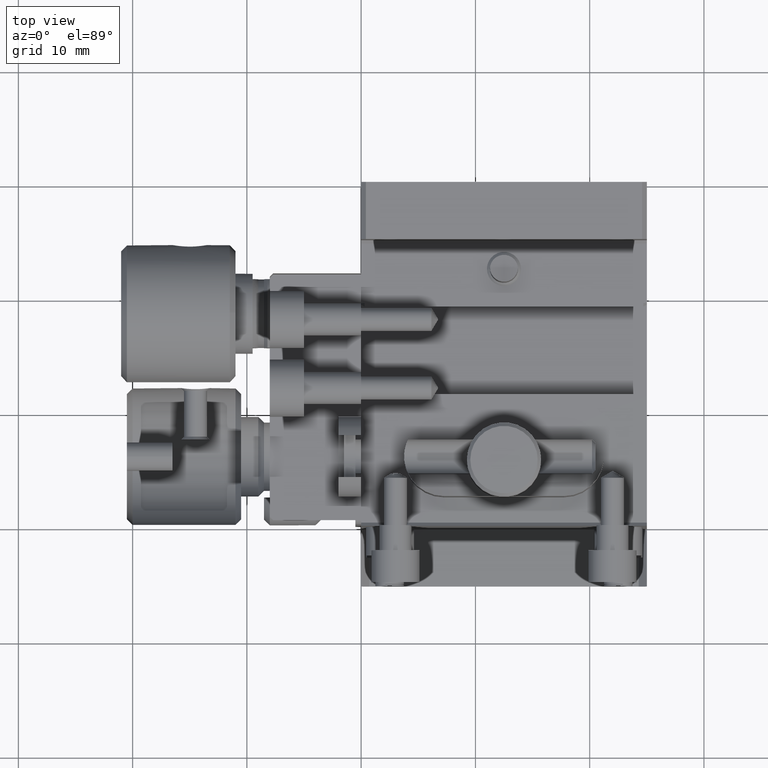
[diagram: clean part render]
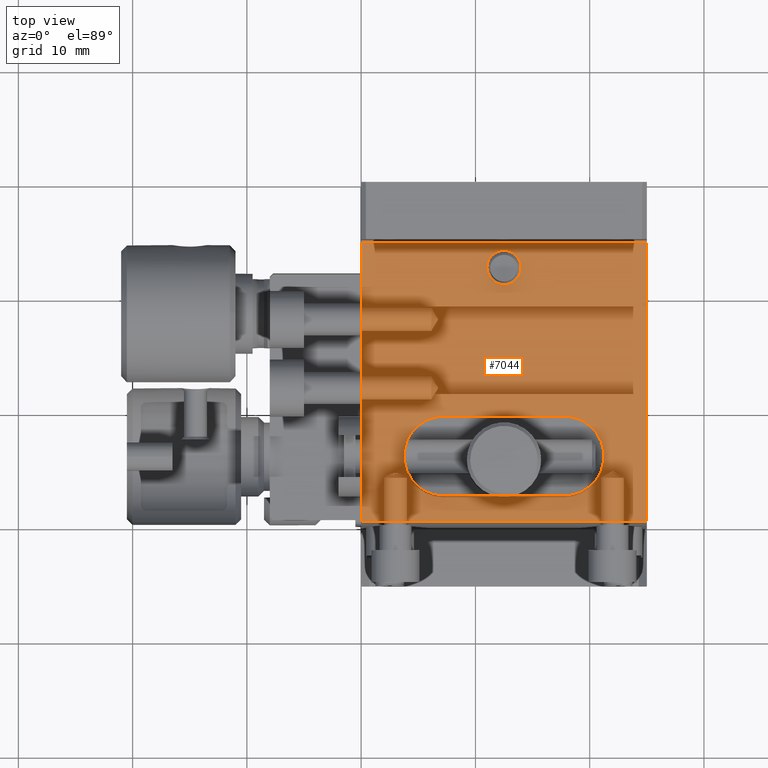
[diagram: same view with one face highlighted and labeled with its STEP entity id]
A machine part, top view. The second image highlights one B-rep face of the part: STEP entity #7044.
In plain terms, the highlighted planar face has unit normal (0, -0, -1).
Its self-contained STEP definition (entity closure, byte-faithful):
#350 = VECTOR ( 'NONE', #8109, 1000.000000000000000 ) ;
#439 = VERTEX_POINT ( 'NONE', #1603 ) ;
#516 = VERTEX_POINT ( 'NONE', #3213 ) ;
#634 = DIRECTION ( 'NONE',  ( 1.000000000000000000, 0.000000000000000000, 0.000000000000000000 ) ) ;
#646 = ORIENTED_EDGE ( 'NONE', *, *, #7902, .T. ) ;
#677 = AXIS2_PLACEMENT_3D ( 'NONE', #5592, #5691, #1373 ) ;
#845 = VERTEX_POINT ( 'NONE', #2065 ) ;
#901 = EDGE_LOOP ( 'NONE', ( #2744, #1547, #1986, #1946 ) ) ;
#1177 = EDGE_CURVE ( 'NONE', #8571, #8323, #4103, .T. ) ;
#1247 = FACE_BOUND ( 'NONE', #3575, .T. ) ;
#1271 = CARTESIAN_POINT ( 'NONE',  ( 0.000000000000000000, 20.30000000000000782, -4.621587790148713127E-16 ) ) ;
#1373 = DIRECTION ( 'NONE',  ( 1.000000000000000000, 0.000000000000000000, 0.000000000000000000 ) ) ;
#1442 = CARTESIAN_POINT ( 'NONE',  ( 12.50000000000000000, 42.49999999999999289, 0.000000000000000000 ) ) ;
#1477 = CARTESIAN_POINT ( 'NONE',  ( 0.000000000000000000, 44.70000000000000284, -3.593425470377331621E-15 ) ) ;
#1503 = CARTESIAN_POINT ( 'NONE',  ( 25.00000000000000000, 29.50000000000000000, -5.765651408217207155E-16 ) ) ;
#1547 = ORIENTED_EDGE ( 'NONE', *, *, #7279, .F. ) ;
#1600 = VERTEX_POINT ( 'NONE', #1271 ) ;
#1603 = CARTESIAN_POINT ( 'NONE',  ( 17.75000000000000355, 22.50000000000000000, -3.796280499234341948E-17 ) ) ;
#1878 = CIRCLE ( 'NONE', #677, 3.500000000000000444 ) ;
#1926 = CARTESIAN_POINT ( 'NONE',  ( 25.00000000000000000, 22.50000000000000000, -1.518512199693736779E-16 ) ) ;
#1946 = ORIENTED_EDGE ( 'NONE', *, *, #5940, .T. ) ;
#1986 = ORIENTED_EDGE ( 'NONE', *, *, #1177, .T. ) ;
#2007 = CARTESIAN_POINT ( 'NONE',  ( 25.00000000000000000, 44.70000000000000284, -1.498801083243959949E-15 ) ) ;
#2065 = CARTESIAN_POINT ( 'NONE',  ( 25.00000000000000000, 20.30000000000000782, -4.621587790148713127E-16 ) ) ;
#2069 = LINE ( 'NONE', #1503, #9137 ) ;
#2118 = DIRECTION ( 'NONE',  ( -1.000000000000000000, -0.000000000000000000, -0.000000000000000000 ) ) ;
#2171 = EDGE_CURVE ( 'NONE', #845, #1600, #8567, .T. ) ;
#2721 = CARTESIAN_POINT ( 'NONE',  ( 17.75000000000000355, 29.50000000000000000, -1.441412852054301789E-16 ) ) ;
#2744 = ORIENTED_EDGE ( 'NONE', *, *, #2171, .T. ) ;
#3169 = LINE ( 'NONE', #8247, #350 ) ;
#3195 = EDGE_LOOP ( 'NONE', ( #6824, #646, #6419, #6481 ) ) ;
#3213 = CARTESIAN_POINT ( 'NONE',  ( 7.249999999999999112, 22.50000000000000000, -3.796280499234341948E-17 ) ) ;
#3426 = VECTOR ( 'NONE', #4013, 1000.000000000000000 ) ;
#3467 = CIRCLE ( 'NONE', #8784, 1.500000000010003776 ) ;
#3564 = EDGE_CURVE ( 'NONE', #439, #4060, #3773, .T. ) ;
#3575 = EDGE_LOOP ( 'NONE', ( #6939 ) ) ;
#3616 = DIRECTION ( 'NONE',  ( 0.000000000000000000, 1.000000000000000000, -6.067341726462099832E-17 ) ) ;
#3634 = DIRECTION ( 'NONE',  ( -1.000000000000000000, -0.000000000000000000, -0.000000000000000000 ) ) ;
#3756 = VERTEX_POINT ( 'NONE', #5027 ) ;
#3773 = CIRCLE ( 'NONE', #9080, 3.499999999999999556 ) ;
#3907 = CARTESIAN_POINT ( 'NONE',  ( 0.000000000000000000, 15.00000000000000000, -1.517883041479710152E-15 ) ) ;
#4013 = DIRECTION ( 'NONE',  ( 1.000000000000000000, 0.000000000000000000, 0.000000000000000000 ) ) ;
#4034 = EDGE_CURVE ( 'NONE', #7557, #7557, #3467, .T. ) ;
#4060 = VERTEX_POINT ( 'NONE', #2721 ) ;
#4103 = LINE ( 'NONE', #7047, #3426 ) ;
#4148 = FACE_BOUND ( 'NONE', #3195, .T. ) ;
#4735 = LINE ( 'NONE', #1926, #8694 ) ;
#4836 = DIRECTION ( 'NONE',  ( 1.000000000000000000, 0.000000000000000000, 0.000000000000000000 ) ) ;
#4903 = DIRECTION ( 'NONE',  ( 0.000000000000000000, -6.067341726462099832E-17, -1.000000000000000000 ) ) ;
#5027 = CARTESIAN_POINT ( 'NONE',  ( 7.249999999999999112, 29.50000000000000000, -1.441412852054301789E-16 ) ) ;
#5592 = CARTESIAN_POINT ( 'NONE',  ( 7.250000000000000000, 26.00000000000000000, 0.000000000000000000 ) ) ;
#5645 = VECTOR ( 'NONE', #6139, 1000.000000000000000 ) ;
#5691 = DIRECTION ( 'NONE',  ( 0.000000000000000000, 0.000000000000000000, 1.000000000000000000 ) ) ;
#5710 = PLANE ( 'NONE',  #8832 ) ;
#5729 = VECTOR ( 'NONE', #2118, 1000.000000000000000 ) ;
#5940 = EDGE_CURVE ( 'NONE', #8323, #845, #3169, .T. ) ;
#6039 = EDGE_CURVE ( 'NONE', #516, #439, #4735, .T. ) ;
#6089 = CARTESIAN_POINT ( 'NONE',  ( 14.00000000001000444, 42.49999999999999289, 0.000000000000000000 ) ) ;
#6139 = DIRECTION ( 'NONE',  ( -0.000000000000000000, -1.000000000000000000, -0.000000000000000000 ) ) ;
#6226 = LINE ( 'NONE', #3907, #5645 ) ;
#6255 = DIRECTION ( 'NONE',  ( 0.000000000000000000, 0.000000000000000000, 1.000000000000000000 ) ) ;
#6419 = ORIENTED_EDGE ( 'NONE', *, *, #8774, .T. ) ;
#6481 = ORIENTED_EDGE ( 'NONE', *, *, #6039, .T. ) ;
#6518 = CARTESIAN_POINT ( 'NONE',  ( 25.00000000000000000, 44.69999999999999574, -3.363032508724162323E-15 ) ) ;
#6824 = ORIENTED_EDGE ( 'NONE', *, *, #3564, .T. ) ;
#6939 = ORIENTED_EDGE ( 'NONE', *, *, #4034, .T. ) ;
#7023 = CARTESIAN_POINT ( 'NONE',  ( 17.75000000000000355, 26.00000000000000000, 0.000000000000000000 ) ) ;
#7044 = ADVANCED_FACE ( 'NONE', ( #7752, #4148, #1247 ), #5710, .T. ) ;
#7047 = CARTESIAN_POINT ( 'NONE',  ( 25.00000000000000000, 44.70000000000000284, -1.498801083243959949E-15 ) ) ;
#7279 = EDGE_CURVE ( 'NONE', #8571, #1600, #6226, .T. ) ;
#7557 = VERTEX_POINT ( 'NONE', #6089 ) ;
#7633 = CARTESIAN_POINT ( 'NONE',  ( 25.00000000000000000, 20.30000000000000782, -1.836970198720817743E-17 ) ) ;
#7752 = FACE_OUTER_BOUND ( 'NONE', #901, .T. ) ;
#7763 = DIRECTION ( 'NONE',  ( 1.000000000000000000, 0.000000000000000000, 0.000000000000000000 ) ) ;
#7902 = EDGE_CURVE ( 'NONE', #4060, #3756, #2069, .T. ) ;
#8109 = DIRECTION ( 'NONE',  ( -0.000000000000000000, -1.000000000000000000, -0.000000000000000000 ) ) ;
#8247 = CARTESIAN_POINT ( 'NONE',  ( 25.00000000000000000, 15.00000000000000000, -1.517883041479710152E-15 ) ) ;
#8323 = VERTEX_POINT ( 'NONE', #6518 ) ;
#8567 = LINE ( 'NONE', #7633, #5729 ) ;
#8571 = VERTEX_POINT ( 'NONE', #1477 ) ;
#8694 = VECTOR ( 'NONE', #7763, 1000.000000000000000 ) ;
#8708 = DIRECTION ( 'NONE',  ( 0.000000000000000000, 0.000000000000000000, 1.000000000000000000 ) ) ;
#8774 = EDGE_CURVE ( 'NONE', #3756, #516, #1878, .T. ) ;
#8784 = AXIS2_PLACEMENT_3D ( 'NONE', #1442, #8708, #634 ) ;
#8832 = AXIS2_PLACEMENT_3D ( 'NONE', #2007, #4903, #3616 ) ;
#9080 = AXIS2_PLACEMENT_3D ( 'NONE', #7023, #6255, #4836 ) ;
#9137 = VECTOR ( 'NONE', #3634, 1000.000000000000000 ) ;